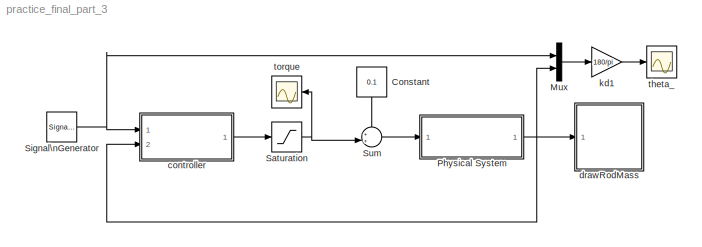
MODEL practice_final_part_3
KIND model
BLOCK [Constant] Constant
  SID = 65
  Value = 0.1
BLOCK [Mux] Mux
  DisplayOption = bar
  Inputs = 2
  Ports = [2, 1]
  SID = 43
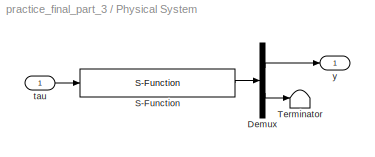
BLOCK [SubSystem] Physical System
  Ports = [1, 1]
  RequestExecContextInheritance = off
  SID = 17
BLOCK [Demux] Physical System/Demux
  DisplayOption = bar
  Outputs = [1;2]
  Ports = [1, 2]
  SID = 19
BLOCK [S-Function] Physical System/S-Function
  EnableBusSupport = off
  FunctionName = rodmass_dynamics
  Parameters = P
  Ports = [1, 1]
  SID = 41
BLOCK [Terminator] Physical System/Terminator
  SID = 64
BLOCK [Inport] Physical System/tau
  IconDisplay = Port number
  SID = 18
BLOCK [Outport] Physical System/y
  IconDisplay = Port number
  SID = 24
BLOCK [Saturate] Saturation
  InputPortMap = u0
  LowerLimit = -P.tau_max
  Ports = [1, 1]
  SID = 44
  UpperLimit = P.tau_max
BLOCK [SignalGenerator] Signal\nGenerator
  Amplitude = 10*pi/180
  Frequency = .1
  Ports = [0, 1]
  SID = 45
  WaveForm = square
BLOCK [Sum] Sum
  IconShape = round
  InputSameDT = off
  Inputs = ++|
  OutDataTypeStr = Inherit: Inherit via internal rule
  Ports = [2, 1]
  SID = 66
  SaturateOnIntegerOverflow = off
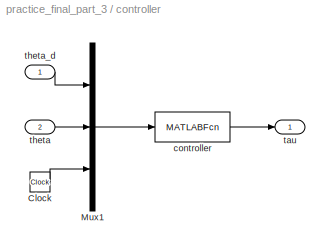
BLOCK [SubSystem] controller
  Ports = [2, 1]
  RequestExecContextInheritance = off
  SID = 46
BLOCK [Clock] controller/Clock
  SID = 49
BLOCK [Mux] controller/Mux1
  DisplayOption = bar
  Inputs = 3
  Ports = [3, 1]
  SID = 50
BLOCK [MATLABFcn] controller/controller
  MATLABFcn = ctrl_pid(u,P)
  OutputDimensions = 1
  Ports = [1, 1]
  SID = 51
  SampleTime = P.Ts
BLOCK [Outport] controller/tau
  IconDisplay = Port number
  SID = 52
BLOCK [Inport] controller/theta
  IconDisplay = Port number
  Port = 2
  SID = 48
BLOCK [Inport] controller/theta_d
  IconDisplay = Port number
  SID = 47
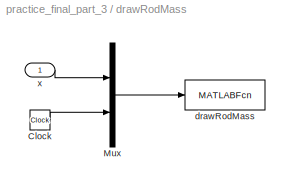
BLOCK [SubSystem] drawRodMass
  Ports = [1]
  RequestExecContextInheritance = off
  SID = 34
BLOCK [Clock] drawRodMass/Clock
  SID = 36
BLOCK [Mux] drawRodMass/Mux
  DisplayOption = bar
  Inputs = 2
  Ports = [2, 1]
  SID = 37
BLOCK [MATLABFcn] drawRodMass/drawRodMass
  MATLABFcn = drawRodMass(u,L,w,R,H)
  OutputDimensions = 0
  Ports = [1]
  SID = 38
  SampleTime = 0.1
BLOCK [Inport] drawRodMass/x
  IconDisplay = Port number
  SID = 35
BLOCK [Gain] kd1
  Gain = 180/pi
  OutDataTypeStr = Inherit: Inherit via internal rule
  ParamDataTypeStr = Inherit: Inherit via internal rule
  SID = 58
  SaturateOnIntegerOverflow = off
BLOCK [Scope] theta_
  DataFormat = StructureWithTime
  Floating = off
  LimitDataPoints = off
  NumInputPorts = 1
  Ports = [1]
  SID = 59
  SampleTime = 0
  SaveName = ScopeData1
  ShowLegends = off
  YMax = 35
  YMin = -35
BLOCK [Scope] torque
  DataFormat = StructureWithTime
  Floating = off
  LimitDataPoints = off
  NumInputPorts = 1
  Ports = [1]
  SID = 60
  SampleTime = 0
  SaveName = ScopeData2
  ShowLegends = off
  YMax = 2.75
  YMin = -1.5
LINE Constant:1 -> Sum:1
LINE Mux:1 -> kd1:1
LINE Physical System/Demux:1 -> Physical System/y:1
LINE Physical System/Demux:2 -> Physical System/Terminator:1
LINE Physical System/S-Function:1 -> Physical System/Demux:1
LINE Physical System/tau:1 -> Physical System/S-Function:1
NET Physical System:1 -> Mux:2, controller:2, drawRodMass:1
NET Saturation:1 -> Sum:2, torque:1
NET Signal\nGenerator:1 -> Mux:1, controller:1
LINE Sum:1 -> Physical System:1
LINE controller/Clock:1 -> controller/Mux1:3
LINE controller/Mux1:1 -> controller/controller:1
LINE controller/controller:1 -> controller/tau:1
LINE controller/theta:1 -> controller/Mux1:2
LINE controller/theta_d:1 -> controller/Mux1:1
LINE controller:1 -> Saturation:1
LINE drawRodMass/Clock:1 -> drawRodMass/Mux:2
LINE drawRodMass/Mux:1 -> drawRodMass/drawRodMass:1
LINE drawRodMass/x:1 -> drawRodMass/Mux:1
LINE kd1:1 -> theta_:1
note: NET lines group one-source signal fan-out (src -> all destinations, sorted); 1:1 wires keep LINE
